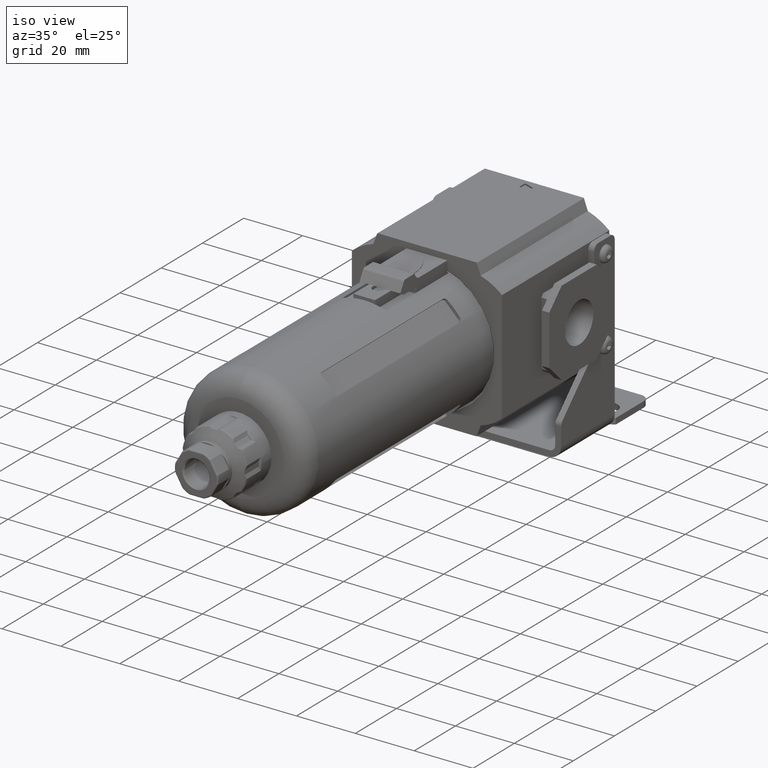
[diagram: clean part render]
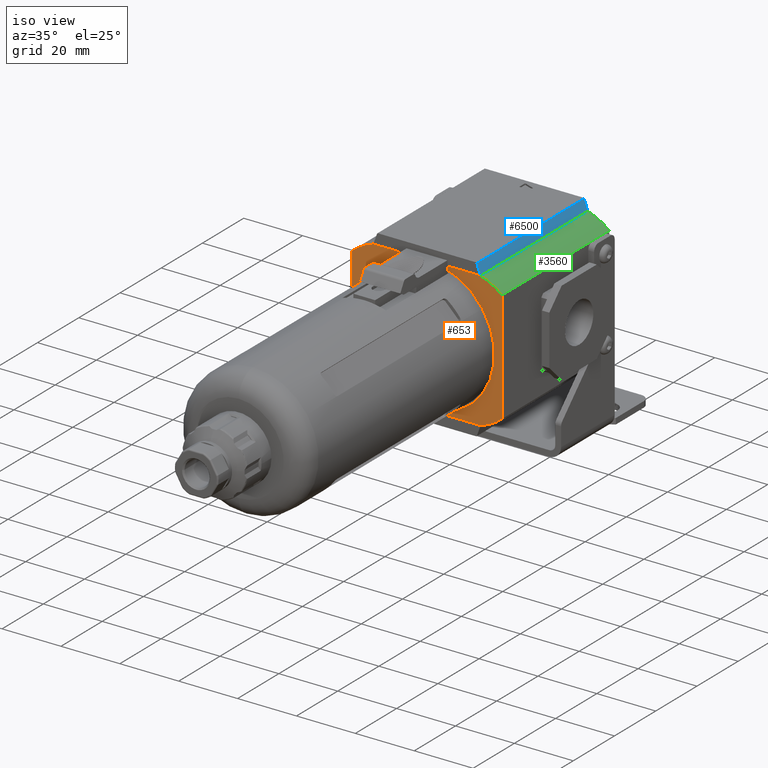
[diagram: same view with three faces highlighted in distinct colors, each labeled with its STEP entity id]
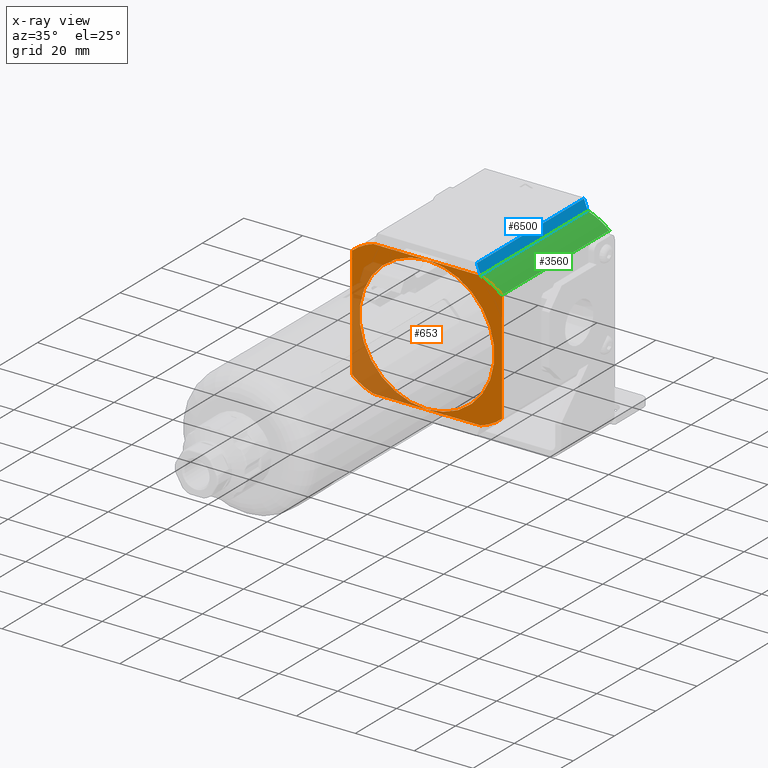
[diagram: x-ray of the same camera — body ghosted, the three highlighted faces saturated]
A machine part, iso view with three faces highlighted in distinct colors.
The next image is the same camera in x-ray (body ghosted, the three faces saturated) — at least one of them is partly hidden behind the body in this view.
Their STEP definitions:

[orange] entity #653 — the highlighted planar face has unit normal (0, 1, -0).
#62 = AXIS2_PLACEMENT_3D ( 'NONE', #294, #6881, #1260 ) ;
#82 = LINE ( 'NONE', #9432, #3593 ) ;
#279 = DIRECTION ( 'NONE',  ( 9.130123557772670800E-017, -1.000000000000000000, -0.0000000000000000000 ) ) ;
#294 = CARTESIAN_POINT ( 'NONE',  ( 0.0000000000000000000, -31.00000000000000000, 0.0000000000000000000 ) ) ;
#582 = ORIENTED_EDGE ( 'NONE', *, *, #9911, .T. ) ;
#629 = DIRECTION ( 'NONE',  ( 1.000000000000000000, -0.0000000000000000000, 0.0000000000000000000 ) ) ;
#653 = ADVANCED_FACE ( 'NONE', ( #4720, #1938 ), #10370, .F. ) ;
#661 = EDGE_LOOP ( 'NONE', ( #3334, #582, #1110, #1775, #2636, #765, #3133, #9225 ) ) ;
#707 = CIRCLE ( 'NONE', #9208, 19.99999999999999300 ) ;
#765 = ORIENTED_EDGE ( 'NONE', *, *, #3808, .T. ) ;
#772 = LINE ( 'NONE', #8414, #3281 ) ;
#874 = DIRECTION ( 'NONE',  ( 0.0000000000000000000, 1.000000000000000000, -0.0000000000000000000 ) ) ;
#896 = CIRCLE ( 'NONE', #62, 22.90000000000000200 ) ;
#934 = VERTEX_POINT ( 'NONE', #7936 ) ;
#1110 = ORIENTED_EDGE ( 'NONE', *, *, #10857, .T. ) ;
#1144 = VERTEX_POINT ( 'NONE', #9115 ) ;
#1194 = VECTOR ( 'NONE', #8646, 1000.000000000000000 ) ;
#1196 = VERTEX_POINT ( 'NONE', #2641 ) ;
#1260 = DIRECTION ( 'NONE',  ( 0.0000000000000000000, 0.0000000000000000000, 1.000000000000000000 ) ) ;
#1273 = EDGE_CURVE ( 'NONE', #11584, #934, #6880, .T. ) ;
#1362 = VERTEX_POINT ( 'NONE', #6516 ) ;
#1519 = LINE ( 'NONE', #7187, #10944 ) ;
#1699 = CIRCLE ( 'NONE', #7024, 19.99999999999999300 ) ;
#1775 = ORIENTED_EDGE ( 'NONE', *, *, #6345, .F. ) ;
#1881 = CARTESIAN_POINT ( 'NONE',  ( 25.50000000000000400, -31.00000000000000000, 26.69999999999999900 ) ) ;
#1938 = FACE_OUTER_BOUND ( 'NONE', #661, .T. ) ;
#2166 = DIRECTION ( 'NONE',  ( -9.130123557772670800E-017, 1.000000000000000000, -0.0000000000000000000 ) ) ;
#2413 = VERTEX_POINT ( 'NONE', #9686 ) ;
#2490 = EDGE_CURVE ( 'NONE', #8988, #10958, #1699, .T. ) ;
#2636 = ORIENTED_EDGE ( 'NONE', *, *, #2490, .F. ) ;
#2641 = CARTESIAN_POINT ( 'NONE',  ( -18.21668986678495400, -31.00000000000001100, -23.00000000000000000 ) ) ;
#2703 = CARTESIAN_POINT ( 'NONE',  ( 12.44075424135393200, -31.00000000000001100, -3.852191570551038300 ) ) ;
#2778 = DIRECTION ( 'NONE',  ( -1.000000000000000000, 0.0000000000000000000, 0.0000000000000000000 ) ) ;
#2858 = DIRECTION ( 'NONE',  ( -0.0000000000000000000, -0.0000000000000000000, -1.000000000000000000 ) ) ;
#3133 = ORIENTED_EDGE ( 'NONE', *, *, #10219, .T. ) ;
#3281 = VECTOR ( 'NONE', #2778, 1000.000000000000000 ) ;
#3334 = ORIENTED_EDGE ( 'NONE', *, *, #9639, .F. ) ;
#3404 = CARTESIAN_POINT ( 'NONE',  ( 12.44075424135393200, -31.00000000000001100, 3.852191570551038300 ) ) ;
#3593 = VECTOR ( 'NONE', #2858, 1000.000000000000000 ) ;
#3633 = DIRECTION ( 'NONE',  ( 1.000000000000000000, -1.734723475976807800E-016, 0.0000000000000000000 ) ) ;
#3667 = LINE ( 'NONE', #4845, #1194 ) ;
#3808 = EDGE_CURVE ( 'NONE', #8988, #1362, #772, .T. ) ;
#3809 = CARTESIAN_POINT ( 'NONE',  ( 25.49999999999999300, -31.00000000000001100, 18.99999999999999600 ) ) ;
#3869 = CARTESIAN_POINT ( 'NONE',  ( 18.21668986678495400, -31.00000000000001100, 23.00000000000000000 ) ) ;
#4066 = EDGE_LOOP ( 'NONE', ( #5203, #6968 ) ) ;
#4258 = AXIS2_PLACEMENT_3D ( 'NONE', #1881, #11327, #5660 ) ;
#4349 = DIRECTION ( 'NONE',  ( 1.000000000000000000, -1.734723475976807800E-016, 0.0000000000000000000 ) ) ;
#4720 = FACE_BOUND ( 'NONE', #4066, .T. ) ;
#4845 = CARTESIAN_POINT ( 'NONE',  ( -25.49999999999999600, -31.00000000000000000, 26.69999999999999900 ) ) ;
#5203 = ORIENTED_EDGE ( 'NONE', *, *, #8533, .T. ) ;
#5660 = DIRECTION ( 'NONE',  ( 0.0000000000000000000, 0.0000000000000000000, 1.000000000000000000 ) ) ;
#5925 = CARTESIAN_POINT ( 'NONE',  ( -12.44075424135393200, -31.00000000000000400, 3.852191570551038300 ) ) ;
#6345 = EDGE_CURVE ( 'NONE', #10958, #1144, #82, .T. ) ;
#6483 = CIRCLE ( 'NONE', #7381, 19.99999999999999300 ) ;
#6505 = VERTEX_POINT ( 'NONE', #8394 ) ;
#6512 = CARTESIAN_POINT ( 'NONE',  ( 0.0000000000000000000, -31.00000000000000000, 0.0000000000000000000 ) ) ;
#6516 = CARTESIAN_POINT ( 'NONE',  ( -18.21668986678495400, -31.00000000000000400, 23.00000000000000000 ) ) ;
#6866 = DIRECTION ( 'NONE',  ( -1.000000000000000000, -1.734723475976807800E-016, 0.0000000000000000000 ) ) ;
#6880 = CIRCLE ( 'NONE', #8192, 22.90000000000000200 ) ;
#6881 = DIRECTION ( 'NONE',  ( 0.0000000000000000000, 1.000000000000000000, -0.0000000000000000000 ) ) ;
#6968 = ORIENTED_EDGE ( 'NONE', *, *, #1273, .T. ) ;
#7024 = AXIS2_PLACEMENT_3D ( 'NONE', #3404, #9987, #4349 ) ;
#7187 = CARTESIAN_POINT ( 'NONE',  ( 25.50000000000000400, -31.00000000000000000, -22.99999999999999600 ) ) ;
#7381 = AXIS2_PLACEMENT_3D ( 'NONE', #2703, #9288, #3633 ) ;
#7443 = DIRECTION ( 'NONE',  ( 0.0000000000000000000, 0.0000000000000000000, 1.000000000000000000 ) ) ;
#7774 = CARTESIAN_POINT ( 'NONE',  ( -12.44075424135393200, -31.00000000000001100, -3.852191570551038300 ) ) ;
#7936 = CARTESIAN_POINT ( 'NONE',  ( 0.0000000000000000000, -31.00000000000000000, -22.90000000000000200 ) ) ;
#8192 = AXIS2_PLACEMENT_3D ( 'NONE', #6512, #874, #7443 ) ;
#8394 = CARTESIAN_POINT ( 'NONE',  ( -25.49999999999999300, -31.00000000000001100, -18.99999999999999600 ) ) ;
#8410 = CARTESIAN_POINT ( 'NONE',  ( -25.49999999999999300, -31.00000000000000400, 18.99999999999999600 ) ) ;
#8414 = CARTESIAN_POINT ( 'NONE',  ( 25.50000000000000400, -31.00000000000000000, 23.00000000000000000 ) ) ;
#8533 = EDGE_CURVE ( 'NONE', #934, #11584, #896, .T. ) ;
#8624 = CARTESIAN_POINT ( 'NONE',  ( 2.804441170047439400E-015, -31.00000000000000000, 22.90000000000000200 ) ) ;
#8646 = DIRECTION ( 'NONE',  ( -0.0000000000000000000, -0.0000000000000000000, -1.000000000000000000 ) ) ;
#8747 = DIRECTION ( 'NONE',  ( -1.000000000000000000, -1.734723475976807800E-016, 0.0000000000000000000 ) ) ;
#8988 = VERTEX_POINT ( 'NONE', #3869 ) ;
#9031 = EDGE_CURVE ( 'NONE', #10899, #6505, #3667, .T. ) ;
#9115 = CARTESIAN_POINT ( 'NONE',  ( 25.49999999999999300, -31.00000000000001100, -18.99999999999999600 ) ) ;
#9208 = AXIS2_PLACEMENT_3D ( 'NONE', #7774, #2166, #8747 ) ;
#9225 = ORIENTED_EDGE ( 'NONE', *, *, #9031, .T. ) ;
#9288 = DIRECTION ( 'NONE',  ( -9.130123557772670800E-017, -1.000000000000000000, 0.0000000000000000000 ) ) ;
#9432 = CARTESIAN_POINT ( 'NONE',  ( 25.50000000000000400, -31.00000000000000000, 26.69999999999999900 ) ) ;
#9639 = EDGE_CURVE ( 'NONE', #1196, #6505, #707, .T. ) ;
#9686 = CARTESIAN_POINT ( 'NONE',  ( 18.21668986678495400, -31.00000000000001100, -23.00000000000000000 ) ) ;
#9911 = EDGE_CURVE ( 'NONE', #1196, #2413, #1519, .T. ) ;
#9987 = DIRECTION ( 'NONE',  ( 9.130123557772670800E-017, 1.000000000000000000, -0.0000000000000000000 ) ) ;
#10219 = EDGE_CURVE ( 'NONE', #1362, #10899, #10505, .T. ) ;
#10370 = PLANE ( 'NONE',  #4258 ) ;
#10505 = CIRCLE ( 'NONE', #10656, 19.99999999999999300 ) ;
#10656 = AXIS2_PLACEMENT_3D ( 'NONE', #5925, #279, #6866 ) ;
#10857 = EDGE_CURVE ( 'NONE', #2413, #1144, #6483, .T. ) ;
#10899 = VERTEX_POINT ( 'NONE', #8410 ) ;
#10944 = VECTOR ( 'NONE', #629, 1000.000000000000000 ) ;
#10958 = VERTEX_POINT ( 'NONE', #3809 ) ;
#11327 = DIRECTION ( 'NONE',  ( 0.0000000000000000000, 1.000000000000000000, -0.0000000000000000000 ) ) ;
#11584 = VERTEX_POINT ( 'NONE', #8624 ) ;

[blue] entity #6500 — the highlighted planar face has unit normal (0.9397, -0, 0.342).
#99 = VERTEX_POINT ( 'NONE', #11549 ) ;
#204 = ORIENTED_EDGE ( 'NONE', *, *, #1238, .T. ) ;
#498 = CARTESIAN_POINT ( 'NONE',  ( 16.94184552477284800, -31.00000000000001100, 26.50260604299769800 ) ) ;
#800 = CARTESIAN_POINT ( 'NONE',  ( 16.86999999999999000, -31.00000000000001100, 26.69999999999999600 ) ) ;
#980 = ORIENTED_EDGE ( 'NONE', *, *, #10148, .T. ) ;
#1068 = ORIENTED_EDGE ( 'NONE', *, *, #3047, .T. ) ;
#1238 = EDGE_CURVE ( 'NONE', #10364, #8988, #9967, .T. ) ;
#1363 = LINE ( 'NONE', #10515, #10801 ) ;
#2035 = EDGE_LOOP ( 'NONE', ( #11271, #1068, #204, #980 ) ) ;
#3047 = EDGE_CURVE ( 'NONE', #7691, #10364, #10511, .T. ) ;
#3373 = VECTOR ( 'NONE', #5519, 1000.000000000000100 ) ;
#3717 = CARTESIAN_POINT ( 'NONE',  ( 16.86999999999999000, -31.00000000000001100, 26.69999999999999600 ) ) ;
#3869 = CARTESIAN_POINT ( 'NONE',  ( 18.21668986678495400, -31.00000000000001100, 23.00000000000000000 ) ) ;
#4559 = CARTESIAN_POINT ( 'NONE',  ( 16.86999999999999400, 21.00000000000000000, 26.69999999999999600 ) ) ;
#4649 = DIRECTION ( 'NONE',  ( 0.9396926207859069800, -8.579509734102550000E-017, 0.3420201433256728200 ) ) ;
#4655 = CARTESIAN_POINT ( 'NONE',  ( 16.94184552477284800, -31.00000000000001100, 26.50260604299769800 ) ) ;
#5470 = VECTOR ( 'NONE', #11281, 1000.000000000000000 ) ;
#5519 = DIRECTION ( 'NONE',  ( 0.3420201433256727700, 0.0000000000000000000, -0.9396926207859068700 ) ) ;
#6500 = ADVANCED_FACE ( 'NONE', ( #11870 ), #10305, .T. ) ;
#7191 = AXIS2_PLACEMENT_3D ( 'NONE', #3717, #4649, #11273 ) ;
#7205 = CARTESIAN_POINT ( 'NONE',  ( 16.94184552477285500, 21.00000000000000000, 26.50260604299769800 ) ) ;
#7357 = DIRECTION ( 'NONE',  ( 0.3420201433256727700, 0.0000000000000000000, -0.9396926207859068700 ) ) ;
#7691 = VERTEX_POINT ( 'NONE', #7205 ) ;
#8366 = LINE ( 'NONE', #4559, #3373 ) ;
#8988 = VERTEX_POINT ( 'NONE', #3869 ) ;
#9694 = VECTOR ( 'NONE', #7357, 1000.000000000000100 ) ;
#9967 = LINE ( 'NONE', #800, #9694 ) ;
#10148 = EDGE_CURVE ( 'NONE', #8988, #99, #1363, .T. ) ;
#10305 = PLANE ( 'NONE',  #7191 ) ;
#10364 = VERTEX_POINT ( 'NONE', #498 ) ;
#10511 = LINE ( 'NONE', #4655, #5470 ) ;
#10515 = CARTESIAN_POINT ( 'NONE',  ( 18.21668986678495400, -31.00000000000001100, 23.00000000000000000 ) ) ;
#10801 = VECTOR ( 'NONE', #11463, 1000.000000000000000 ) ;
#11271 = ORIENTED_EDGE ( 'NONE', *, *, #11421, .F. ) ;
#11273 = DIRECTION ( 'NONE',  ( 0.3420201433256727700, 0.0000000000000000000, -0.9396926207859068700 ) ) ;
#11281 = DIRECTION ( 'NONE',  ( -9.130123557772670800E-017, -1.000000000000000000, 5.934755191192136300E-033 ) ) ;
#11421 = EDGE_CURVE ( 'NONE', #7691, #99, #8366, .T. ) ;
#11463 = DIRECTION ( 'NONE',  ( 9.130123557772669600E-017, 1.000000000000000000, -0.0000000000000000000 ) ) ;
#11549 = CARTESIAN_POINT ( 'NONE',  ( 18.21668986678495700, 21.00000000000000000, 23.00000000000000000 ) ) ;
#11870 = FACE_OUTER_BOUND ( 'NONE', #2035, .T. ) ;

[green] entity #3560 — the highlighted cylindrical surface (partial cylindrical patch) has radius 20 mm, axis along (0, 1, -0).
#84 = ORIENTED_EDGE ( 'NONE', *, *, #10148, .F. ) ;
#99 = VERTEX_POINT ( 'NONE', #11549 ) ;
#196 = DIRECTION ( 'NONE',  ( 9.130123557772670800E-017, 1.000000000000000000, -0.0000000000000000000 ) ) ;
#466 = CARTESIAN_POINT ( 'NONE',  ( 25.49999999999999600, 21.00000000000000000, 18.99999999999999600 ) ) ;
#719 = ORIENTED_EDGE ( 'NONE', *, *, #2587, .F. ) ;
#1363 = LINE ( 'NONE', #10515, #10801 ) ;
#1699 = CIRCLE ( 'NONE', #7024, 19.99999999999999300 ) ;
#1751 = AXIS2_PLACEMENT_3D ( 'NONE', #5825, #196, #6769 ) ;
#1924 = ORIENTED_EDGE ( 'NONE', *, *, #2490, .T. ) ;
#2490 = EDGE_CURVE ( 'NONE', #8988, #10958, #1699, .T. ) ;
#2587 = EDGE_CURVE ( 'NONE', #99, #8187, #8305, .T. ) ;
#3088 = ORIENTED_EDGE ( 'NONE', *, *, #11846, .T. ) ;
#3340 = AXIS2_PLACEMENT_3D ( 'NONE', #6832, #7765, #3993 ) ;
#3404 = CARTESIAN_POINT ( 'NONE',  ( 12.44075424135393200, -31.00000000000001100, 3.852191570551038300 ) ) ;
#3560 = ADVANCED_FACE ( 'NONE', ( #10672 ), #10049, .T. ) ;
#3809 = CARTESIAN_POINT ( 'NONE',  ( 25.49999999999999300, -31.00000000000001100, 18.99999999999999600 ) ) ;
#3869 = CARTESIAN_POINT ( 'NONE',  ( 18.21668986678495400, -31.00000000000001100, 23.00000000000000000 ) ) ;
#3993 = DIRECTION ( 'NONE',  ( -1.000000000000000000, 1.734723475976807300E-016, 0.0000000000000000000 ) ) ;
#4349 = DIRECTION ( 'NONE',  ( 1.000000000000000000, -1.734723475976807800E-016, 0.0000000000000000000 ) ) ;
#5311 = CARTESIAN_POINT ( 'NONE',  ( 25.49999999999999300, -31.00000000000001100, 18.99999999999999600 ) ) ;
#5825 = CARTESIAN_POINT ( 'NONE',  ( 12.44075424135393600, 21.00000000000000000, 3.852191570551038300 ) ) ;
#6456 = VECTOR ( 'NONE', #11952, 1000.000000000000000 ) ;
#6769 = DIRECTION ( 'NONE',  ( 1.000000000000000000, -1.734723475976807300E-016, 0.0000000000000000000 ) ) ;
#6832 = CARTESIAN_POINT ( 'NONE',  ( 12.44075424135393200, -31.00000000000001100, 3.852191570551038300 ) ) ;
#7024 = AXIS2_PLACEMENT_3D ( 'NONE', #3404, #9987, #4349 ) ;
#7765 = DIRECTION ( 'NONE',  ( 9.130123557772669600E-017, 1.000000000000000000, -0.0000000000000000000 ) ) ;
#8187 = VERTEX_POINT ( 'NONE', #466 ) ;
#8305 = CIRCLE ( 'NONE', #1751, 19.99999999999999600 ) ;
#8949 = EDGE_LOOP ( 'NONE', ( #719, #84, #1924, #3088 ) ) ;
#8971 = LINE ( 'NONE', #5311, #6456 ) ;
#8988 = VERTEX_POINT ( 'NONE', #3869 ) ;
#9987 = DIRECTION ( 'NONE',  ( 9.130123557772670800E-017, 1.000000000000000000, -0.0000000000000000000 ) ) ;
#10049 = CYLINDRICAL_SURFACE ( 'NONE', #3340, 19.99999999999999600 ) ;
#10148 = EDGE_CURVE ( 'NONE', #8988, #99, #1363, .T. ) ;
#10515 = CARTESIAN_POINT ( 'NONE',  ( 18.21668986678495400, -31.00000000000001100, 23.00000000000000000 ) ) ;
#10672 = FACE_OUTER_BOUND ( 'NONE', #8949, .T. ) ;
#10801 = VECTOR ( 'NONE', #11463, 1000.000000000000000 ) ;
#10958 = VERTEX_POINT ( 'NONE', #3809 ) ;
#11463 = DIRECTION ( 'NONE',  ( 9.130123557772669600E-017, 1.000000000000000000, -0.0000000000000000000 ) ) ;
#11549 = CARTESIAN_POINT ( 'NONE',  ( 18.21668986678495700, 21.00000000000000000, 23.00000000000000000 ) ) ;
#11846 = EDGE_CURVE ( 'NONE', #10958, #8187, #8971, .T. ) ;
#11952 = DIRECTION ( 'NONE',  ( 9.130123557772669600E-017, 1.000000000000000000, -0.0000000000000000000 ) ) ;